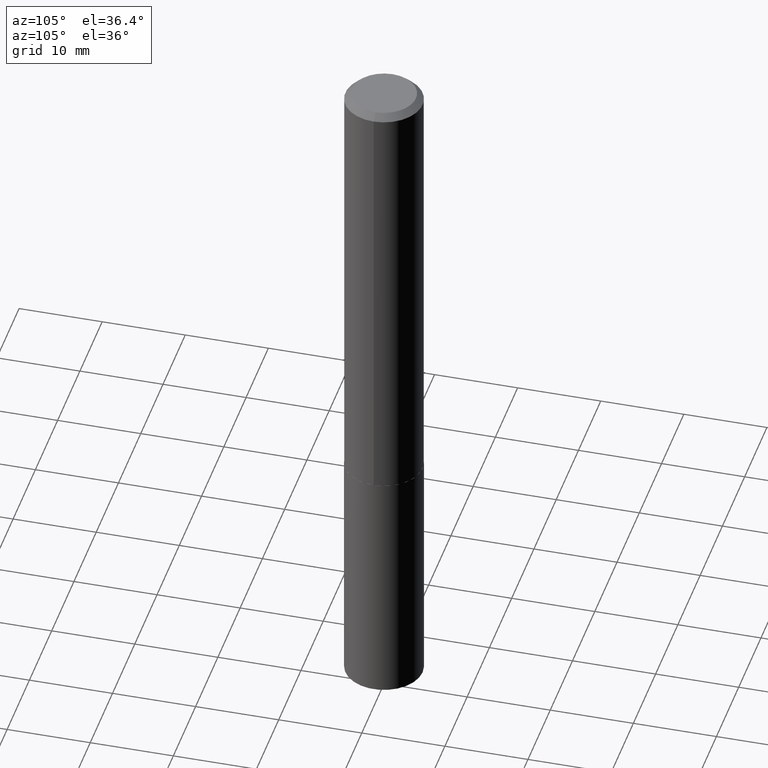
[diagram: clean part render]
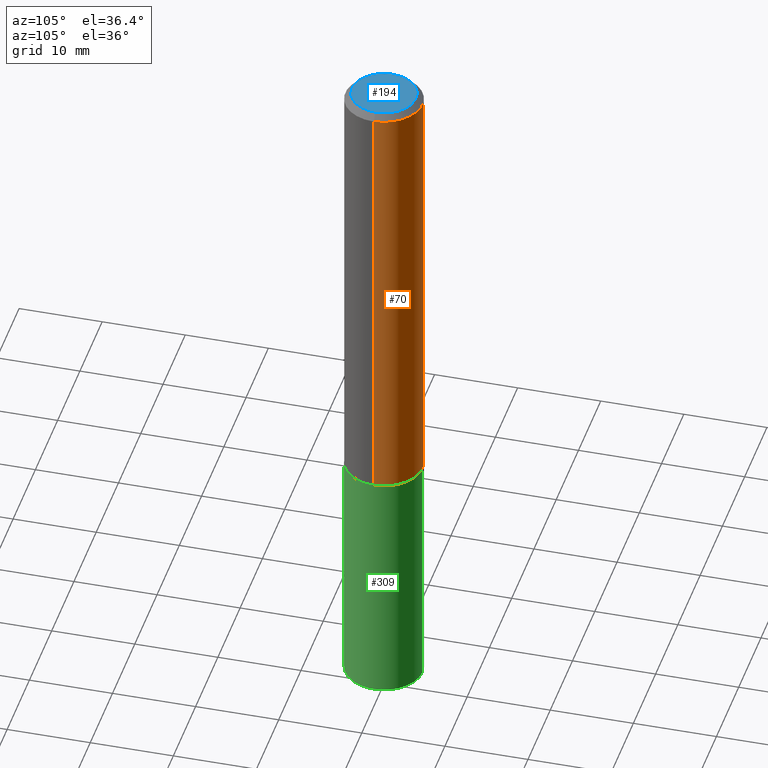
[diagram: same view with three faces highlighted in distinct colors, each labeled with its STEP entity id]
A machine part, auxiliary view with three faces highlighted in distinct colors.
Their STEP definitions:

[orange] entity #70 — the highlighted cylindrical surface (partial cylindrical patch) has radius 4.6495 mm, axis along (-0, 0, 1).
#25 = DIRECTION ( 'NONE',  ( -2.445468806185136877E-29, 3.491481338843145188E-15, 1.000000000000000000 ) ) ;
#31 = DIRECTION ( 'NONE',  ( -2.445468806185136597E-29, 3.491481338843145583E-15, 1.000000000000000000 ) ) ;
#42 = CARTESIAN_POINT ( 'NONE',  ( 5.130349008495799778E-29, -7.324778700759037341E-15, -2.097900000000000542 ) ) ;
#43 = VECTOR ( 'NONE', #107, 39.37007874015748143 ) ;
#58 = CARTESIAN_POINT ( 'NONE',  ( 0.1830500000000001015, -1.278231318150471850E-15, 8.925841588094466461E-30 ) ) ;
#60 = EDGE_CURVE ( 'NONE', #365, #265, #201, .T. ) ;
#64 = AXIS2_PLACEMENT_3D ( 'NONE', #76, #199, #316 ) ;
#67 = VERTEX_POINT ( 'NONE', #102 ) ;
#70 = ADVANCED_FACE ( 'NONE', ( #279 ), #345, .T. ) ;
#76 = CARTESIAN_POINT ( 'NONE',  ( 0.000000000000000000, 0.000000000000000000, 0.000000000000000000 ) ) ;
#83 = CARTESIAN_POINT ( 'NONE',  ( 0.1830500000000000183, -1.387340109989320162E-15, -0.03125000000000021511 ) ) ;
#102 = CARTESIAN_POINT ( 'NONE',  ( -0.1830500000000000183, -2.416295268490077926E-15, -0.03125000000000021511 ) ) ;
#106 = EDGE_CURVE ( 'NONE', #265, #67, #226, .T. ) ;
#107 = DIRECTION ( 'NONE',  ( -2.445468806185136877E-29, 3.491481338843145188E-15, 1.000000000000000000 ) ) ;
#109 = AXIS2_PLACEMENT_3D ( 'NONE', #159, #31, #370 ) ;
#128 = ORIENTED_EDGE ( 'NONE', *, *, #106, .T. ) ;
#130 = ORIENTED_EDGE ( 'NONE', *, *, #223, .F. ) ;
#159 = CARTESIAN_POINT ( 'NONE',  ( 7.642090019328604414E-31, -1.091087918388490513E-16, -0.03125000000000021511 ) ) ;
#161 = DIRECTION ( 'NONE',  ( 1.000000000000000000, -6.982962677686266711E-15, 0.000000000000000000 ) ) ;
#167 = VERTEX_POINT ( 'NONE', #83 ) ;
#179 = CARTESIAN_POINT ( 'NONE',  ( -0.1830500000000001015, 1.300648477808864112E-15, -9.004110682711610994E-30 ) ) ;
#190 = CARTESIAN_POINT ( 'NONE',  ( -0.1830500000000002403, -6.024130222950171258E-15, -2.097900000000000542 ) ) ;
#199 = DIRECTION ( 'NONE',  ( -2.445468806185136597E-29, 3.491481338843145583E-15, 1.000000000000000000 ) ) ;
#201 = CIRCLE ( 'NONE', #385, 0.1830500000000002403 ) ;
#223 = EDGE_CURVE ( 'NONE', #365, #167, #252, .T. ) ;
#226 = LINE ( 'NONE', #179, #43 ) ;
#231 = ORIENTED_EDGE ( 'NONE', *, *, #253, .F. ) ;
#234 = ORIENTED_EDGE ( 'NONE', *, *, #60, .T. ) ;
#252 = LINE ( 'NONE', #58, #294 ) ;
#253 = EDGE_CURVE ( 'NONE', #167, #67, #343, .T. ) ;
#265 = VERTEX_POINT ( 'NONE', #190 ) ;
#274 = EDGE_LOOP ( 'NONE', ( #234, #128, #231, #130 ) ) ;
#279 = FACE_OUTER_BOUND ( 'NONE', #274, .T. ) ;
#283 = DIRECTION ( 'NONE',  ( -2.445468806185136597E-29, 3.491481338843145583E-15, 1.000000000000000000 ) ) ;
#294 = VECTOR ( 'NONE', #25, 39.37007874015748143 ) ;
#316 = DIRECTION ( 'NONE',  ( 1.000000000000000000, -6.982962677686266711E-15, 4.876176775795936353E-29 ) ) ;
#343 = CIRCLE ( 'NONE', #109, 0.1830500000000000183 ) ;
#345 = CYLINDRICAL_SURFACE ( 'NONE', #64, 0.1830500000000001015 ) ;
#363 = CARTESIAN_POINT ( 'NONE',  ( 0.1830500000000002403, -8.603010018909510375E-15, -2.097900000000000542 ) ) ;
#365 = VERTEX_POINT ( 'NONE', #363 ) ;
#370 = DIRECTION ( 'NONE',  ( 1.000000000000000000, -6.982962677686266711E-15, 0.000000000000000000 ) ) ;
#385 = AXIS2_PLACEMENT_3D ( 'NONE', #42, #283, #161 ) ;

[blue] entity #194 — the highlighted planar face has unit normal (0, -0, -1).
#26 = CARTESIAN_POINT ( 'NONE',  ( -2.919964657261547595E-48, 4.168935659749483931E-34, 1.194030629168650700E-19 ) ) ;
#49 = CARTESIAN_POINT ( 'NONE',  ( -5.839929314523095191E-48, 8.337871319498967861E-34, 2.388061258337301399E-19 ) ) ;
#61 = DIRECTION ( 'NONE',  ( -2.445468806185136597E-29, 3.491481338843145583E-15, 1.000000000000000000 ) ) ;
#63 = CARTESIAN_POINT ( 'NONE',  ( -5.839929314523095191E-48, 8.337871319498967861E-34, 2.388061258337301399E-19 ) ) ;
#84 = EDGE_CURVE ( 'NONE', #367, #149, #310, .T. ) ;
#112 = DIRECTION ( 'NONE',  ( -1.000000000000000000, 6.982962677686265922E-15, -4.876176775795935793E-29 ) ) ;
#149 = VERTEX_POINT ( 'NONE', #383 ) ;
#175 = DIRECTION ( 'NONE',  ( 1.000000000000000000, -6.982962677686266711E-15, 4.876168073847652343E-29 ) ) ;
#178 = PLANE ( 'NONE',  #191 ) ;
#191 = AXIS2_PLACEMENT_3D ( 'NONE', #26, #228, #112 ) ;
#194 = ADVANCED_FACE ( 'NONE', ( #353 ), #178, .F. ) ;
#197 = EDGE_LOOP ( 'NONE', ( #307, #271 ) ) ;
#225 = AXIS2_PLACEMENT_3D ( 'NONE', #49, #61, #175 ) ;
#228 = DIRECTION ( 'NONE',  ( 2.438088387897960049E-29, -3.491481338843145188E-15, -1.000000000000000000 ) ) ;
#232 = CARTESIAN_POINT ( 'NONE',  ( -0.1517999999999999627, 1.114568130392198594E-15, 2.388061258261264241E-19 ) ) ;
#243 = DIRECTION ( 'NONE',  ( 1.000000000000000000, -6.982962677686266711E-15, 4.876168073847652343E-29 ) ) ;
#271 = ORIENTED_EDGE ( 'NONE', *, *, #277, .T. ) ;
#277 = EDGE_CURVE ( 'NONE', #149, #367, #312, .T. ) ;
#307 = ORIENTED_EDGE ( 'NONE', *, *, #84, .T. ) ;
#310 = CIRCLE ( 'NONE', #225, 0.1517999999999999627 ) ;
#312 = CIRCLE ( 'NONE', #331, 0.1517999999999999627 ) ;
#330 = DIRECTION ( 'NONE',  ( -2.445468806185136597E-29, 3.491481338843145583E-15, 1.000000000000000000 ) ) ;
#331 = AXIS2_PLACEMENT_3D ( 'NONE', #63, #330, #243 ) ;
#353 = FACE_OUTER_BOUND ( 'NONE', #197, .T. ) ;
#367 = VERTEX_POINT ( 'NONE', #232 ) ;
#383 = CARTESIAN_POINT ( 'NONE',  ( 0.1517999999999999627, -1.203173273196323170E-15, 2.388061258416432083E-19 ) ) ;

[green] entity #309 — the highlighted cylindrical surface (partial cylindrical patch) has radius 4.6495 mm, axis along (-0, 0, 1).
#6 = ORIENTED_EDGE ( 'NONE', *, *, #261, .T. ) ;
#10 = AXIS2_PLACEMENT_3D ( 'NONE', #185, #210, #155 ) ;
#27 = EDGE_CURVE ( 'NONE', #374, #193, #247, .T. ) ;
#32 = ORIENTED_EDGE ( 'NONE', *, *, #325, .F. ) ;
#59 = AXIS2_PLACEMENT_3D ( 'NONE', #213, #264, #302 ) ;
#66 = FACE_OUTER_BOUND ( 'NONE', #165, .T. ) ;
#73 = DIRECTION ( 'NONE',  ( -2.445528654128284610E-29, 3.491395633182224159E-15, 1.000000000000000000 ) ) ;
#82 = CIRCLE ( 'NONE', #59, 0.1830499999999999905 ) ;
#92 = EDGE_CURVE ( 'NONE', #220, #117, #114, .T. ) ;
#108 = VECTOR ( 'NONE', #229, 39.37007874015748143 ) ;
#114 = LINE ( 'NONE', #297, #108 ) ;
#117 = VERTEX_POINT ( 'NONE', #206 ) ;
#123 = CYLINDRICAL_SURFACE ( 'NONE', #10, 0.1830499999999999905 ) ;
#153 = CARTESIAN_POINT ( 'NONE',  ( 5.131571742898891458E-29, -7.326524441428458056E-15, -2.098400000000000709 ) ) ;
#155 = DIRECTION ( 'NONE',  ( -6.982962677686264344E-15, -1.000000000000000000, 2.984810700534567995E-15 ) ) ;
#164 = CARTESIAN_POINT ( 'NONE',  ( 1.300648477808914204E-15, 0.1830499999999926353, -2.098400000000001153 ) ) ;
#165 = EDGE_LOOP ( 'NONE', ( #6, #192, #32, #281 ) ) ;
#185 = CARTESIAN_POINT ( 'NONE',  ( 5.131571742898891458E-29, -7.326524441428458056E-15, -2.098400000000000709 ) ) ;
#192 = ORIENTED_EDGE ( 'NONE', *, *, #27, .T. ) ;
#193 = VERTEX_POINT ( 'NONE', #322 ) ;
#196 = CIRCLE ( 'NONE', #320, 0.1830499999999999905 ) ;
#206 = CARTESIAN_POINT ( 'NONE',  ( -1.278231318150419588E-15, -0.1830500000000073180, -2.098399999999999821 ) ) ;
#210 = DIRECTION ( 'NONE',  ( -2.445528654128284891E-29, 3.491395633182223764E-15, 1.000000000000000000 ) ) ;
#213 = CARTESIAN_POINT ( 'NONE',  ( 7.967533693959178083E-29, -1.137532802223631787E-14, -3.258051900325483530 ) ) ;
#220 = VERTEX_POINT ( 'NONE', #227 ) ;
#227 = CARTESIAN_POINT ( 'NONE',  ( -1.278231318150391386E-15, -0.1830500000000113425, -3.258051900325483086 ) ) ;
#229 = DIRECTION ( 'NONE',  ( -2.445528654128284610E-29, 3.491395633182224159E-15, 1.000000000000000000 ) ) ;
#247 = LINE ( 'NONE', #164, #285 ) ;
#261 = EDGE_CURVE ( 'NONE', #220, #374, #82, .T. ) ;
#264 = DIRECTION ( 'NONE',  ( -2.445528654128284891E-29, 3.491395633182223764E-15, 1.000000000000000000 ) ) ;
#281 = ORIENTED_EDGE ( 'NONE', *, *, #92, .F. ) ;
#285 = VECTOR ( 'NONE', #73, 39.37007874015748143 ) ;
#297 = CARTESIAN_POINT ( 'NONE',  ( -1.278231318150419588E-15, -0.1830500000000073180, -2.098399999999999821 ) ) ;
#302 = DIRECTION ( 'NONE',  ( -6.982962677686264344E-15, -1.000000000000000000, 2.984810700534567995E-15 ) ) ;
#309 = ADVANCED_FACE ( 'NONE', ( #66 ), #123, .T. ) ;
#320 = AXIS2_PLACEMENT_3D ( 'NONE', #153, #360, #329 ) ;
#322 = CARTESIAN_POINT ( 'NONE',  ( 1.300648477808942800E-15, 0.1830499999999926630, -2.098400000000001153 ) ) ;
#325 = EDGE_CURVE ( 'NONE', #117, #193, #196, .T. ) ;
#329 = DIRECTION ( 'NONE',  ( -6.982962677686264344E-15, -1.000000000000000000, 2.984810700534567995E-15 ) ) ;
#360 = DIRECTION ( 'NONE',  ( -2.445528654128284891E-29, 3.491395633182223764E-15, 1.000000000000000000 ) ) ;
#374 = VERTEX_POINT ( 'NONE', #389 ) ;
#389 = CARTESIAN_POINT ( 'NONE',  ( 1.300648477808942800E-15, 0.1830499999999886107, -3.258051900325484418 ) ) ;